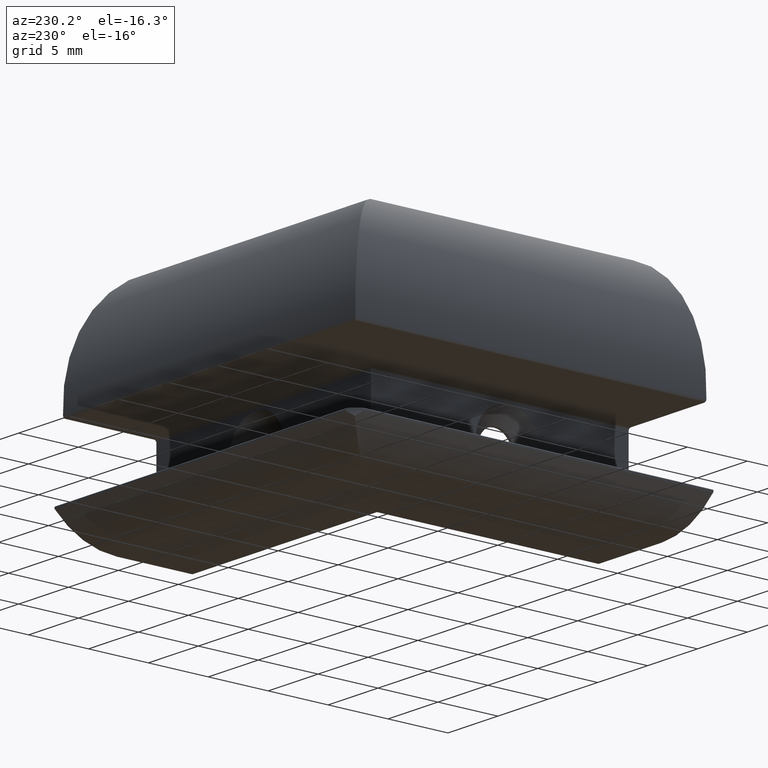
[diagram: clean part render]
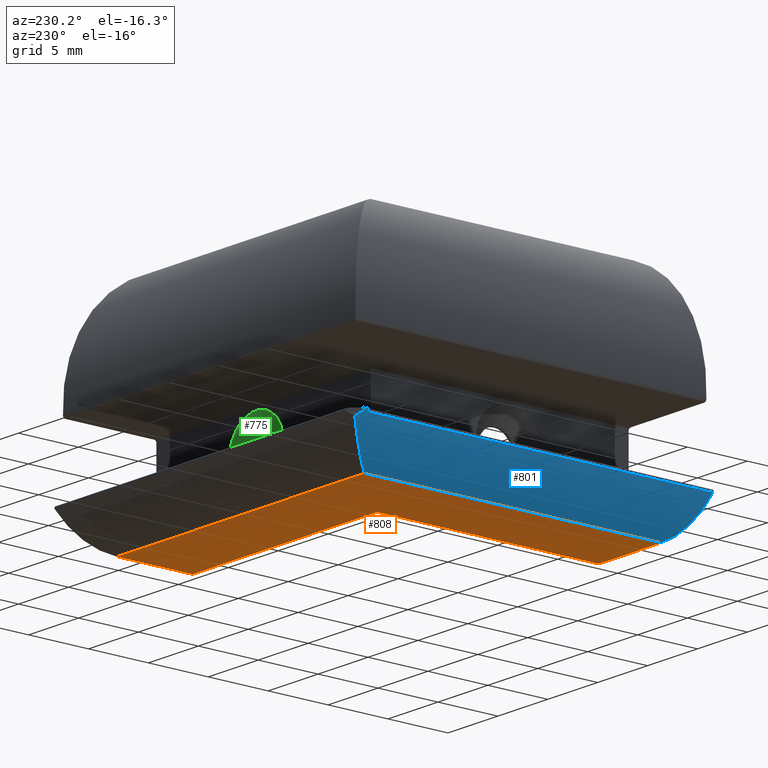
[diagram: same view with three faces highlighted in distinct colors, each labeled with its STEP entity id]
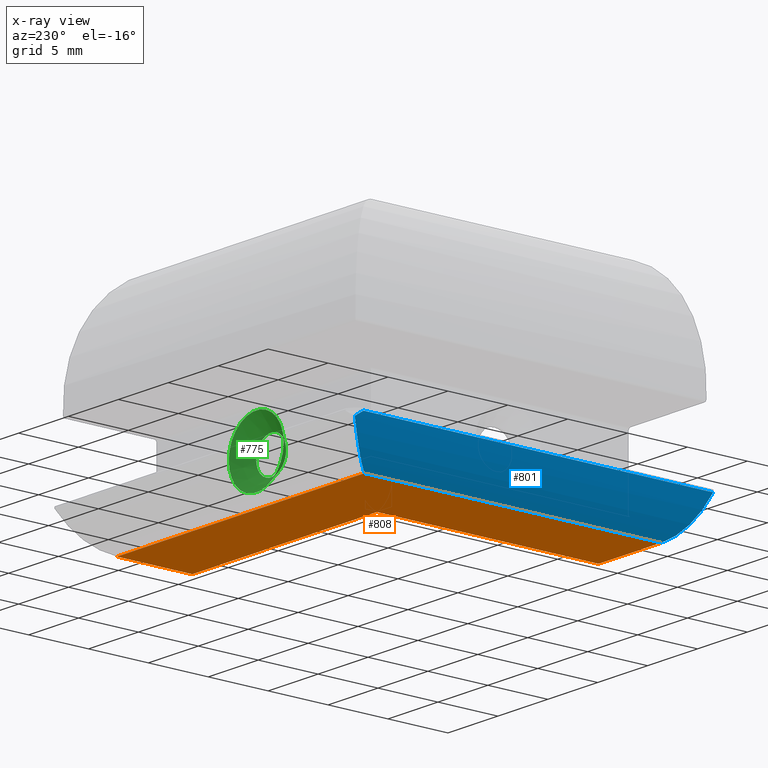
[diagram: x-ray of the same camera — body ghosted, the three highlighted faces saturated]
A machine part, auxiliary view with three faces highlighted in distinct colors.
The next image is the same camera in x-ray (body ghosted, the three faces saturated) — at least one of them is partly hidden behind the body in this view.
Their STEP definitions:

[orange] entity #808 — the highlighted planar face has unit normal (0, 0, 1).
#47=PLANE('',#911);
#109=FACE_OUTER_BOUND('',#157,.T.);
#157=EDGE_LOOP('',(#708,#709,#710,#711,#712,#713,#714,#715,#716,#717));
#171=LINE('',#1209,#240);
#177=LINE('',#1230,#246);
#181=LINE('',#1244,#250);
#188=LINE('',#1271,#257);
#190=LINE('',#1280,#259);
#191=LINE('',#1281,#260);
#197=LINE('',#1296,#266);
#215=LINE('',#1372,#284);
#225=LINE('',#1399,#294);
#226=LINE('',#1400,#295);
#240=VECTOR('',#966,10.);
#246=VECTOR('',#988,10.);
#250=VECTOR('',#1006,10.);
#257=VECTOR('',#1029,10.);
#259=VECTOR('',#1037,10.);
#260=VECTOR('',#1038,10.);
#266=VECTOR('',#1054,10.);
#284=VECTOR('',#1106,10.);
#294=VECTOR('',#1136,10.);
#295=VECTOR('',#1137,10.);
#352=VERTEX_POINT('',#1203);
#354=VERTEX_POINT('',#1207);
#360=VERTEX_POINT('',#1221);
#376=VERTEX_POINT('',#1269);
#378=VERTEX_POINT('',#1274);
#380=VERTEX_POINT('',#1278);
#397=VERTEX_POINT('',#1370);
#404=VERTEX_POINT('',#1398);
#431=EDGE_CURVE('',#352,#354,#171,.T.);
#441=EDGE_CURVE('',#360,#352,#177,.T.);
#449=EDGE_CURVE('',#360,#352,#181,.T.);
#463=EDGE_CURVE('',#354,#376,#188,.T.);
#467=EDGE_CURVE('',#352,#380,#190,.T.);
#468=EDGE_CURVE('',#378,#352,#191,.T.);
#476=EDGE_CURVE('',#352,#380,#197,.T.);
#502=EDGE_CURVE('',#397,#376,#215,.T.);
#515=EDGE_CURVE('',#397,#404,#225,.T.);
#516=EDGE_CURVE('',#404,#378,#226,.T.);
#708=ORIENTED_EDGE('',*,*,#502,.F.);
#709=ORIENTED_EDGE('',*,*,#515,.T.);
#710=ORIENTED_EDGE('',*,*,#516,.T.);
#711=ORIENTED_EDGE('',*,*,#468,.T.);
#712=ORIENTED_EDGE('',*,*,#441,.F.);
#713=ORIENTED_EDGE('',*,*,#449,.T.);
#714=ORIENTED_EDGE('',*,*,#467,.T.);
#715=ORIENTED_EDGE('',*,*,#476,.F.);
#716=ORIENTED_EDGE('',*,*,#431,.T.);
#717=ORIENTED_EDGE('',*,*,#463,.T.);
#808=ADVANCED_FACE('',(#109),#47,.F.);
#911=AXIS2_PLACEMENT_3D('',#1397,#1134,#1135);
#966=DIRECTION('',(0.,-1.,0.));
#988=DIRECTION('',(0.,-1.,0.));
#1006=DIRECTION('',(0.,-1.,0.));
#1029=DIRECTION('',(-1.,0.,0.));
#1037=DIRECTION('',(-1.,-3.88578058618805E-16,0.));
#1038=DIRECTION('',(-1.,1.20024110770287E-16,0.));
#1054=DIRECTION('',(-1.,-3.88578058618805E-16,0.));
#1106=DIRECTION('',(0.,-1.,0.));
#1134=DIRECTION('center_axis',(0.,0.,1.));
#1135=DIRECTION('ref_axis',(1.,0.,0.));
#1136=DIRECTION('',(1.,3.8827471899459E-16,0.));
#1137=DIRECTION('',(3.70074341541719E-16,-1.,0.));
#1203=CARTESIAN_POINT('',(6.,9.25,-10.));
#1207=CARTESIAN_POINT('',(6.,-9.25,-10.));
#1209=CARTESIAN_POINT('',(6.,9.25,-10.));
#1221=CARTESIAN_POINT('',(6.,10.25,-10.));
#1230=CARTESIAN_POINT('',(5.99999999999999,-9.25,-10.));
#1244=CARTESIAN_POINT('',(5.99999999999999,-9.25,-10.));
#1269=CARTESIAN_POINT('',(-0.299999999977106,-9.25,-10.));
#1271=CARTESIAN_POINT('',(6.,-9.25,-10.));
#1274=CARTESIAN_POINT('',(24.5,9.25,-10.));
#1278=CARTESIAN_POINT('',(4.49999999999999,9.24999999999999,-10.));
#1280=CARTESIAN_POINT('',(24.5,9.25,-10.));
#1281=CARTESIAN_POINT('',(24.5,9.25,-10.));
#1296=CARTESIAN_POINT('',(24.5,9.25,-10.));
#1370=CARTESIAN_POINT('',(-0.29999999997711,15.5499885776835,-10.));
#1372=CARTESIAN_POINT('',(-0.299999999977107,-9.25,-10.));
#1397=CARTESIAN_POINT('Origin',(6.69596238608257,8.55403761391743,-10.));
#1398=CARTESIAN_POINT('',(24.5,15.5499885776835,-10.));
#1399=CARTESIAN_POINT('',(24.5,15.5499885776835,-10.));
#1400=CARTESIAN_POINT('',(24.5,21.25,-10.));

[blue] entity #801 — the highlighted cylindrical surface (partial cylindrical patch) has radius 7.2 mm, axis along (0, 1, 0).
#17=B_SPLINE_CURVE_WITH_KNOTS('',3,(#1364,#1365,#1366,#1367,#1368,#1369),
 .UNSPECIFIED.,.F.,.F.,(4,2,4),(0.717974358753996,0.730936890251236,0.782122302768263),
 .UNSPECIFIED.);
#31=ELLIPSE('',#901,10.1823376490863,7.2);
#65=CYLINDRICAL_SURFACE('',#900,7.2);
#102=FACE_OUTER_BOUND('',#149,.T.);
#149=EDGE_LOOP('',(#672,#673,#674,#675,#676));
#214=LINE('',#1361,#283);
#215=LINE('',#1372,#284);
#283=VECTOR('',#1101,10.);
#284=VECTOR('',#1106,10.);
#328=CIRCLE('',#876,7.2);
#375=VERTEX_POINT('',#1267);
#376=VERTEX_POINT('',#1269);
#395=VERTEX_POINT('',#1350);
#396=VERTEX_POINT('',#1363);
#397=VERTEX_POINT('',#1370);
#462=EDGE_CURVE('',#375,#376,#328,.T.);
#499=EDGE_CURVE('',#375,#395,#214,.T.);
#500=EDGE_CURVE('',#396,#395,#17,.T.);
#501=EDGE_CURVE('',#397,#396,#31,.T.);
#502=EDGE_CURVE('',#397,#376,#215,.T.);
#672=ORIENTED_EDGE('',*,*,#500,.F.);
#673=ORIENTED_EDGE('',*,*,#501,.F.);
#674=ORIENTED_EDGE('',*,*,#502,.T.);
#675=ORIENTED_EDGE('',*,*,#462,.F.);
#676=ORIENTED_EDGE('',*,*,#499,.T.);
#801=ADVANCED_FACE('',(#102),#65,.T.);
#876=AXIS2_PLACEMENT_3D('',#1270,#1027,#1028);
#900=AXIS2_PLACEMENT_3D('',#1362,#1102,#1103);
#901=AXIS2_PLACEMENT_3D('',#1371,#1104,#1105);
#1027=DIRECTION('center_axis',(0.,-1.,0.));
#1028=DIRECTION('ref_axis',(-0.719101123592413,0.,-0.694905442523031));
#1101=DIRECTION('',(0.,1.,0.));
#1102=DIRECTION('center_axis',(0.,1.,0.));
#1103=DIRECTION('ref_axis',(-0.719101123592413,0.,-0.694905442523031));
#1104=DIRECTION('center_axis',(0.707106781186547,0.707106781186548,0.));
#1105=DIRECTION('ref_axis',(-0.707106781186548,0.707106781186547,-5.45170992598533E-17));
#1106=DIRECTION('',(0.,-1.,0.));
#1267=CARTESIAN_POINT('',(-5.47752808984248,-9.25,-7.80331918616582));
#1269=CARTESIAN_POINT('',(-0.299999999977106,-9.25,-10.));
#1270=CARTESIAN_POINT('Origin',(-0.299999999977107,-9.25,-2.8));
#1350=CARTESIAN_POINT('',(-5.47752808984248,19.9417016770227,-7.80331918616582));
#1361=CARTESIAN_POINT('',(-5.47752808984248,-9.25,-7.80331918616582));
#1362=CARTESIAN_POINT('Origin',(-0.299999999977107,-9.25,-2.8));
#1363=CARTESIAN_POINT('',(-5.12132605469869,20.3713146324053,-8.14741199778561));
#1364=CARTESIAN_POINT('Ctrl Pts',(-5.12132605469871,20.3713146324052,-8.14741199778572));
#1365=CARTESIAN_POINT('Ctrl Pts',(-5.14744319644258,20.3451973500327,-8.12386429732487));
#1366=CARTESIAN_POINT('Ctrl Pts',(-5.17293999223711,20.3187354250074,-8.10052889672122));
#1367=CARTESIAN_POINT('Ctrl Pts',(-5.29598836455031,20.1862967199082,-7.98633235109816));
#1368=CARTESIAN_POINT('Ctrl Pts',(-5.39057723616805,20.0690427947506,-7.8932975526434));
#1369=CARTESIAN_POINT('Ctrl Pts',(-5.47752808984248,19.9417016770227,-7.80331918616582));
#1370=CARTESIAN_POINT('',(-0.29999999997711,15.5499885776835,-10.));
#1371=CARTESIAN_POINT('Origin',(-0.299999999977107,15.5499885776835,-2.8));
#1372=CARTESIAN_POINT('',(-0.299999999977107,-9.25,-10.));

[green] entity #775 — the highlighted conical surface has half-angle 45 deg.
#76=FACE_OUTER_BOUND('',#120,.T.);
#120=EDGE_LOOP('',(#544,#545,#546,#547,#548,#549));
#168=LINE('',#1193,#237);
#237=VECTOR('',#949,2.125);
#309=CIRCLE('',#845,2.75);
#310=CIRCLE('',#846,2.75);
#311=CIRCLE('',#847,1.5);
#312=CIRCLE('',#848,1.5);
#346=VERTEX_POINT('',#1188);
#347=VERTEX_POINT('',#1189);
#348=VERTEX_POINT('',#1192);
#349=VERTEX_POINT('',#1194);
#421=EDGE_CURVE('',#346,#347,#309,.T.);
#422=EDGE_CURVE('',#347,#346,#310,.T.);
#423=EDGE_CURVE('',#347,#348,#168,.T.);
#424=EDGE_CURVE('',#349,#348,#311,.T.);
#425=EDGE_CURVE('',#348,#349,#312,.T.);
#544=ORIENTED_EDGE('',*,*,#421,.F.);
#545=ORIENTED_EDGE('',*,*,#422,.F.);
#546=ORIENTED_EDGE('',*,*,#423,.T.);
#547=ORIENTED_EDGE('',*,*,#424,.F.);
#548=ORIENTED_EDGE('',*,*,#425,.F.);
#549=ORIENTED_EDGE('',*,*,#423,.F.);
#772=CONICAL_SURFACE('',#844,2.125,0.785398163397448);
#775=ADVANCED_FACE('',(#76),#772,.F.);
#844=AXIS2_PLACEMENT_3D('',#1187,#943,#944);
#845=AXIS2_PLACEMENT_3D('',#1190,#945,#946);
#846=AXIS2_PLACEMENT_3D('',#1191,#947,#948);
#847=AXIS2_PLACEMENT_3D('',#1195,#950,#951);
#848=AXIS2_PLACEMENT_3D('',#1196,#952,#953);
#943=DIRECTION('center_axis',(-3.8827471899459E-16,1.,5.947623346206E-16));
#944=DIRECTION('ref_axis',(1.,3.8827471899459E-16,1.53954118895587E-31));
#945=DIRECTION('center_axis',(3.8827471899459E-16,-1.,-5.947623346206E-16));
#946=DIRECTION('ref_axis',(1.,3.8827471899459E-16,1.53954118895587E-31));
#947=DIRECTION('center_axis',(3.8827471899459E-16,-1.,-5.947623346206E-16));
#948=DIRECTION('ref_axis',(1.,3.8827471899459E-16,1.53954118895587E-31));
#949=DIRECTION('',(0.707106781186548,-0.707106781186547,-5.07156085628118E-16));
#950=DIRECTION('center_axis',(-3.8827471899459E-16,1.,5.947623346206E-16));
#951=DIRECTION('ref_axis',(1.,3.8827471899459E-16,1.53954118895587E-31));
#952=DIRECTION('center_axis',(-3.8827471899459E-16,1.,5.947623346206E-16));
#953=DIRECTION('ref_axis',(1.,3.8827471899459E-16,1.53954118895587E-31));
#1187=CARTESIAN_POINT('Origin',(14.5,11.6249885776832,-4.60000000000031));
#1188=CARTESIAN_POINT('',(17.25,12.2499885776832,-4.60000000000031));
#1189=CARTESIAN_POINT('',(11.75,12.2499885776832,-4.60000000000031));
#1190=CARTESIAN_POINT('Origin',(14.5,12.2499885776832,-4.60000000000031));
#1191=CARTESIAN_POINT('Origin',(14.5,12.2499885776832,-4.60000000000031));
#1192=CARTESIAN_POINT('',(13.,10.9999885776832,-4.60000000000031));
#1193=CARTESIAN_POINT('',(12.375,11.6249885776832,-4.60000000000031));
#1194=CARTESIAN_POINT('',(16.,10.9999885776832,-4.60000000000031));
#1195=CARTESIAN_POINT('Origin',(14.5,10.9999885776832,-4.60000000000031));
#1196=CARTESIAN_POINT('Origin',(14.5,10.9999885776832,-4.60000000000031));